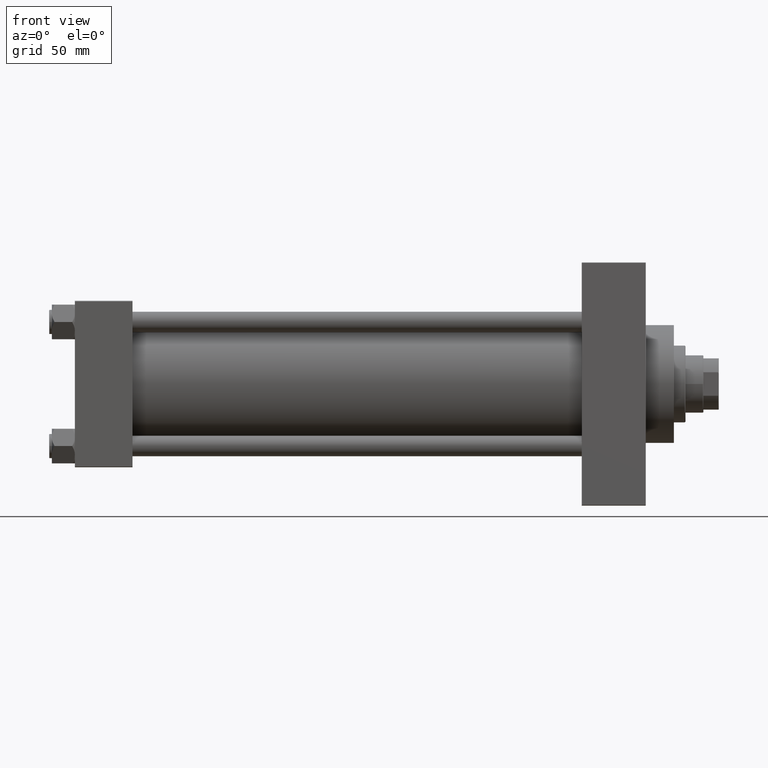
[diagram: clean part render]
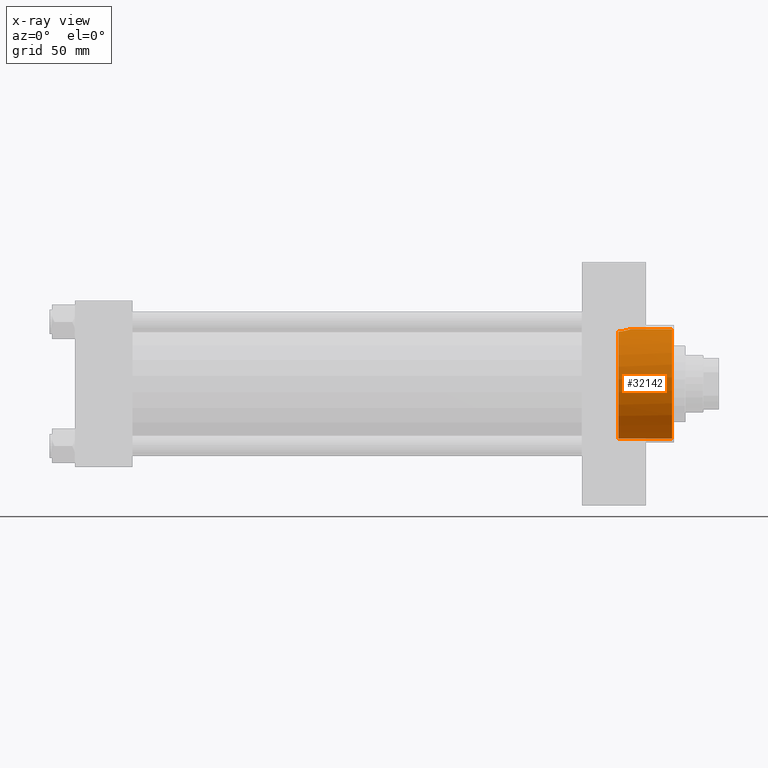
[diagram: x-ray — body ghosted, one internal face saturated and labeled with its STEP entity id]
A machine part, front view, then the same camera in x-ray: the body is ghosted and one INTERNAL B-rep face — a face not visible from any outside direction — is saturated and labeled: STEP entity #32142.
In plain terms, the highlighted cylindrical surface (partial cylindrical patch) has radius 42.75 mm, axis along (1, 0, 0).
Its self-contained STEP definition (entity closure, byte-faithful):
#65 = FACE_OUTER_BOUND ( 'NONE', #22665, .T. ) ;
#302 = DIRECTION ( 'NONE',  ( 0.000000000000000000, 0.000000000000000000, -1.000000000000000000 ) ) ;
#670 = ORIENTED_EDGE ( 'NONE', *, *, #1621, .F. ) ;
#1304 = CARTESIAN_POINT ( 'NONE',  ( 433.7629584476918581, -3.518170577613227046, 42.61034067485236676 ) ) ;
#1621 = EDGE_CURVE ( 'NONE', #46640, #28114, #5816, .T. ) ;
#3415 = ORIENTED_EDGE ( 'NONE', *, *, #42751, .T. ) ;
#4243 = LINE ( 'NONE', #4714, #39606 ) ;
#4714 = CARTESIAN_POINT ( 'NONE',  ( 424.7399999999999523, 0.000000000000000000, -42.75000000000000000 ) ) ;
#5816 = CIRCLE ( 'NONE', #16621, 42.75000000000000000 ) ;
#5918 = LINE ( 'NONE', #39317, #7909 ) ;
#7909 = VECTOR ( 'NONE', #28172, 1000.000000000000000 ) ;
#8562 = CARTESIAN_POINT ( 'NONE',  ( 434.2199999999999136, 5.235365066362919533E-15, 42.75000000000000000 ) ) ;
#8805 = CARTESIAN_POINT ( 'NONE',  ( 434.1041229325393829, -1.782171368608850504, 42.71427362908441694 ) ) ;
#9043 = CARTESIAN_POINT ( 'NONE',  ( 434.2055487969408318, -0.7143419376948664246, 42.74552439370961565 ) ) ;
#10609 = B_SPLINE_CURVE_WITH_KNOTS ( 'NONE', 3,
 ( #8562, #23312, #9043, #19677, #8805, #34450, #1304, #23787, #38568, #20160, #34937, #16543, #12915, #27664, #40004, #32502, #36604, #28870, #28151, #21832, #28632, #43885 ),
 .UNSPECIFIED., .F., .F.,
 ( 4, 2, 2, 2, 2, 2, 2, 2, 2, 2, 4 ),
 ( 0.01702171439019714225, 0.01808348912762094626, 0.01914526386504475028, 0.02126881333989235831, 0.02233058807731619355, 0.02339236281474002532, 0.02551591228958777213, 0.02763946176443551200, 0.02976301123928325881, 0.03188656071413100562, 0.03401011018897874549 ),
 .UNSPECIFIED. ) ;
#11093 = AXIS2_PLACEMENT_3D ( 'NONE', #40712, #26634, #302 ) ;
#11968 = DIRECTION ( 'NONE',  ( 1.000000000000000000, -0.000000000000000000, -0.000000000000000000 ) ) ;
#12915 = CARTESIAN_POINT ( 'NONE',  ( 432.0015928053662151, -7.364010740346945916, 42.11487085516266404 ) ) ;
#13411 = DIRECTION ( 'NONE',  ( 1.000000000000000000, 0.000000000000000000, 0.000000000000000000 ) ) ;
#15053 = CYLINDRICAL_SURFACE ( 'NONE', #11093, 42.75000000000000000 ) ;
#15440 = CARTESIAN_POINT ( 'NONE',  ( 424.7399999999999523, -12.67993690836036791, 40.82623788692757216 ) ) ;
#16543 = CARTESIAN_POINT ( 'NONE',  ( 432.3763861193418734, -6.770732795594974540, 42.21512903942316086 ) ) ;
#16621 = AXIS2_PLACEMENT_3D ( 'NONE', #21771, #36547, #22234 ) ;
#19677 = CARTESIAN_POINT ( 'NONE',  ( 434.1474619350561284, -1.428652546488343278, 42.72761509841832606 ) ) ;
#20160 = CARTESIAN_POINT ( 'NONE',  ( 433.0198534454123092, -5.515287097378162251, 42.39402133541480566 ) ) ;
#20676 = VERTEX_POINT ( 'NONE', #22221 ) ;
#21771 = CARTESIAN_POINT ( 'NONE',  ( 424.7399999999999523, 0.000000000000000000, 0.000000000000000000 ) ) ;
#21832 = CARTESIAN_POINT ( 'NONE',  ( 426.0881855045063844, -12.22213168823641816, 40.96686556097022702 ) ) ;
#22029 = CARTESIAN_POINT ( 'NONE',  ( 424.7399999999999523, 0.000000000000000000, -42.75000000000000000 ) ) ;
#22221 = CARTESIAN_POINT ( 'NONE',  ( 466.4999999999998863, 5.235365066354935472E-15, 42.75000000000000000 ) ) ;
#22234 = DIRECTION ( 'NONE',  ( 0.000000000000000000, 0.000000000000000000, -1.000000000000000000 ) ) ;
#22665 = EDGE_LOOP ( 'NONE', ( #23388, #25867, #3415, #45781, #670 ) ) ;
#23312 = CARTESIAN_POINT ( 'NONE',  ( 434.2199999999998568, -0.3557163794469061502, 42.75000000000000711 ) ) ;
#23388 = ORIENTED_EDGE ( 'NONE', *, *, #32045, .F. ) ;
#23787 = CARTESIAN_POINT ( 'NONE',  ( 433.4260137807290789, -4.526382623994721577, 42.51103856060492348 ) ) ;
#25867 = ORIENTED_EDGE ( 'NONE', *, *, #27568, .T. ) ;
#26634 = DIRECTION ( 'NONE',  ( 1.000000000000000000, -0.000000000000000000, -0.000000000000000000 ) ) ;
#27471 = EDGE_CURVE ( 'NONE', #28114, #43983, #4243, .T. ) ;
#27568 = EDGE_CURVE ( 'NONE', #27928, #20676, #5918, .T. ) ;
#27664 = CARTESIAN_POINT ( 'NONE',  ( 431.1575723231069901, -8.490431257591486869, 41.90230994099357531 ) ) ;
#27928 = VERTEX_POINT ( 'NONE', #37573 ) ;
#28114 = VERTEX_POINT ( 'NONE', #22029 ) ;
#28151 = CARTESIAN_POINT ( 'NONE',  ( 427.3650373963747597, -11.60846388096251758, 41.14496498017212645 ) ) ;
#28172 = DIRECTION ( 'NONE',  ( 1.000000000000000000, -0.000000000000000000, -0.000000000000000000 ) ) ;
#28632 = CARTESIAN_POINT ( 'NONE',  ( 425.4263400167578766, -12.47749807280256817, 40.88911195506442908 ) ) ;
#28870 = CARTESIAN_POINT ( 'NONE',  ( 427.9822741085590110, -11.24766306689393680, 41.24590971077734025 ) ) ;
#29115 = CARTESIAN_POINT ( 'NONE',  ( 466.4999999999998863, 0.000000000000000000, -42.75000000000000000 ) ) ;
#30140 = AXIS2_PLACEMENT_3D ( 'NONE', #46591, #13411, #42940 ) ;
#32045 = EDGE_CURVE ( 'NONE', #27928, #46640, #10609, .T. ) ;
#32142 = ADVANCED_FACE ( 'NONE', ( #65 ), #15053, .F. ) ;
#32502 = CARTESIAN_POINT ( 'NONE',  ( 429.6754924569603986, -9.999825575006530798, 41.56700312386079332 ) ) ;
#34450 = CARTESIAN_POINT ( 'NONE',  ( 433.9325276923765955, -2.832175481623194990, 42.66183901135580925 ) ) ;
#34937 = CARTESIAN_POINT ( 'NONE',  ( 432.8678695714943387, -5.834913689629341427, 42.35109966501106982 ) ) ;
#36547 = DIRECTION ( 'NONE',  ( 1.000000000000000000, 0.000000000000000000, 0.000000000000000000 ) ) ;
#36604 = CARTESIAN_POINT ( 'NONE',  ( 429.1351602650894392, -10.44419664956251381, 41.45664902860858092 ) ) ;
#37573 = CARTESIAN_POINT ( 'NONE',  ( 434.2199999999999136, 5.235365066362919533E-15, 42.75000000000000000 ) ) ;
#38568 = CARTESIAN_POINT ( 'NONE',  ( 433.2993960643595415, -4.860054019011672111, 42.47412520213220688 ) ) ;
#39317 = CARTESIAN_POINT ( 'NONE',  ( 424.7399999999999523, 5.235365066354935472E-15, 42.75000000000000000 ) ) ;
#39606 = VECTOR ( 'NONE', #11968, 1000.000000000000000 ) ;
#40004 = CARTESIAN_POINT ( 'NONE',  ( 430.6852196200359231, -9.025364359016275984, 41.78941323369599559 ) ) ;
#40712 = CARTESIAN_POINT ( 'NONE',  ( 424.7399999999999523, 0.000000000000000000, 0.000000000000000000 ) ) ;
#42751 = EDGE_CURVE ( 'NONE', #20676, #43983, #44106, .T. ) ;
#42940 = DIRECTION ( 'NONE',  ( 0.000000000000000000, 0.000000000000000000, -1.000000000000000000 ) ) ;
#43885 = CARTESIAN_POINT ( 'NONE',  ( 424.7399999999999523, -12.67993690836036791, 40.82623788692757216 ) ) ;
#43983 = VERTEX_POINT ( 'NONE', #29115 ) ;
#44106 = CIRCLE ( 'NONE', #30140, 42.75000000000000000 ) ;
#45781 = ORIENTED_EDGE ( 'NONE', *, *, #27471, .F. ) ;
#46591 = CARTESIAN_POINT ( 'NONE',  ( 466.4999999999998863, 0.000000000000000000, 0.000000000000000000 ) ) ;
#46640 = VERTEX_POINT ( 'NONE', #15440 ) ;